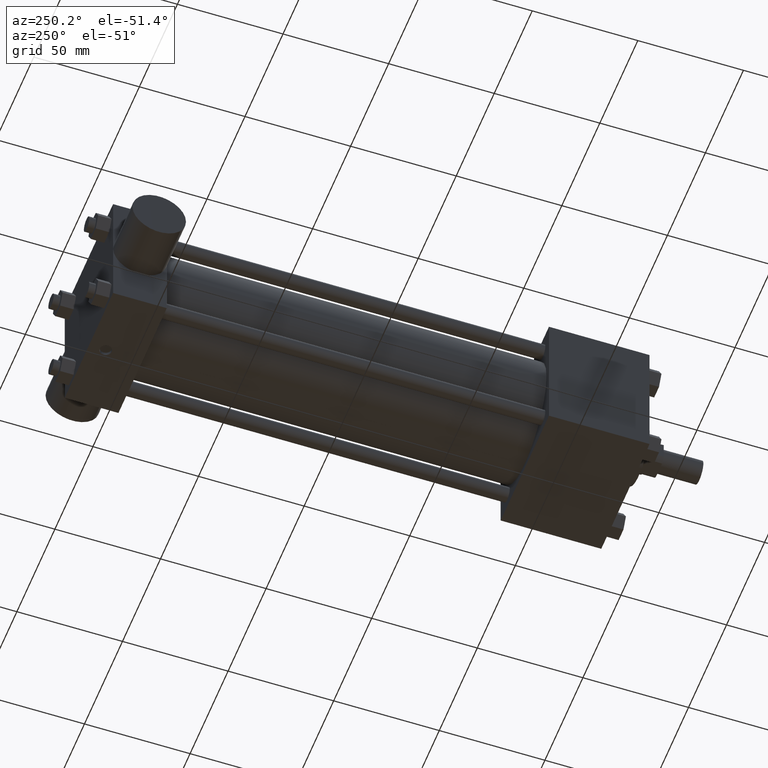
[diagram: clean part render]
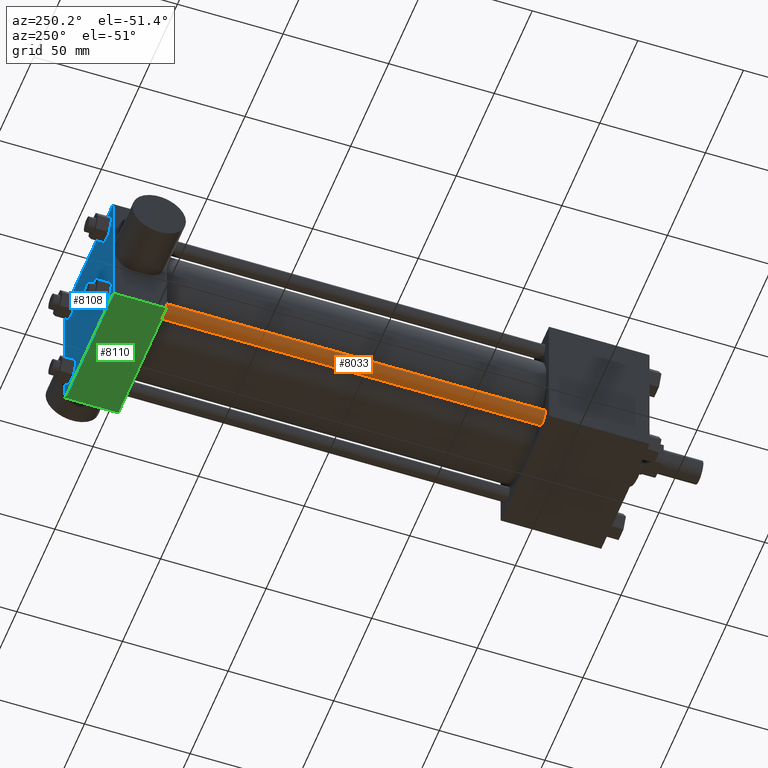
[diagram: same view with three faces highlighted in distinct colors, each labeled with its STEP entity id]
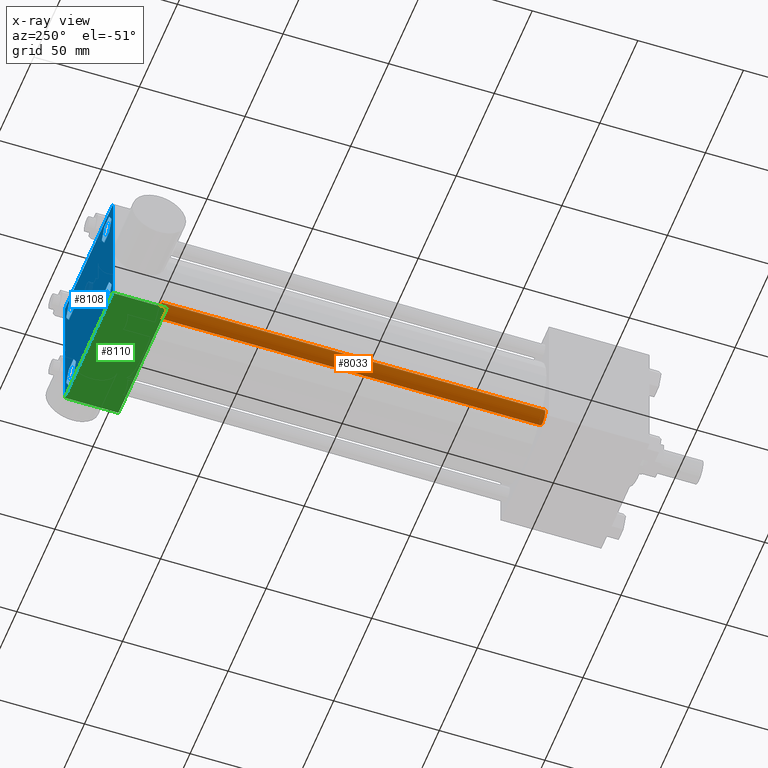
[diagram: x-ray of the same camera — body ghosted, the three highlighted faces saturated]
A machine part, auxiliary view with three faces highlighted in distinct colors.
The next image is the same camera in x-ray (body ghosted, the three faces saturated) — at least one of them is partly hidden behind the body in this view.
Their STEP definitions:

[orange] entity #8033 — the highlighted cylindrical surface (bore or boss wall) has radius 3.5687 mm, axis along (0, -1, 0).
#518=EDGE_CURVE('',#524,#524,#519,.T.);
#519=CIRCLE('',#520,3.568700000E+000);
#520=AXIS2_PLACEMENT_3D('',#521,#522,#523);
#521=CARTESIAN_POINT('',(-2.336800000E+001,6.350000000E+001,-2.336800000E+001));
#522=DIRECTION('',(0.0E+000,1.0E+000,0.0E+000));
#523=DIRECTION('',(1.0E+000,0.0E+000,0.0E+000));
#524=VERTEX_POINT('',#525);
#525=CARTESIAN_POINT('',(-1.979930000E+001,6.350000000E+001,-2.336800000E+001));
#2375=FACE_OUTER_BOUND('',#2377,.T.);
#2376=FACE_BOUND('',#2378,.T.);
#2377=EDGE_LOOP('',(#2379));
#2378=EDGE_LOOP('',(#2380));
#2379=ORIENTED_EDGE('',*,*,#2424,.F.);
#2380=ORIENTED_EDGE('',*,*,#518,.T.);
#2381=CYLINDRICAL_SURFACE('',#2382,3.568700000E+000);
#2382=AXIS2_PLACEMENT_3D('',#2383,#2384,#2385);
#2383=CARTESIAN_POINT('',(-2.336800000E+001,2.444750000E+002,-2.336800000E+001));
#2384=DIRECTION('',(0.0E+000,-1.0E+000,0.0E+000));
#2385=DIRECTION('',(0.0E+000,0.0E+000,-1.0E+000));
#2424=EDGE_CURVE('',#2430,#2430,#2425,.T.);
#2425=CIRCLE('',#2426,3.568700000E+000);
#2426=AXIS2_PLACEMENT_3D('',#2427,#2428,#2429);
#2427=CARTESIAN_POINT('',(-2.336800000E+001,2.444750000E+002,-2.336800000E+001));
#2428=DIRECTION('',(0.0E+000,1.0E+000,0.0E+000));
#2429=DIRECTION('',(1.0E+000,0.0E+000,0.0E+000));
#2430=VERTEX_POINT('',#2431);
#2431=CARTESIAN_POINT('',(-1.979930000E+001,2.444750000E+002,-2.336800000E+001));
#8033=ADVANCED_FACE('',(#2375,#2376),#2381,.T.);

[blue] entity #8108 — the highlighted planar face has unit normal (0, 1, 0).
#4324=FACE_OUTER_BOUND('',#4329,.T.);
#4325=FACE_BOUND('',#4330,.T.);
#4326=FACE_BOUND('',#4331,.T.);
#4327=FACE_BOUND('',#4332,.T.);
#4328=FACE_BOUND('',#4333,.T.);
#4329=EDGE_LOOP('',(#4334,#4335,#4336,#4337,#4338,#4339));
#4330=EDGE_LOOP('',(#4382,#4383,#4384,#4385,#4386,#4387));
#4331=EDGE_LOOP('',(#4430,#4431,#4432,#4433));
#4332=EDGE_LOOP('',(#4462,#4463,#4464,#4465,#4466,#4467));
#4333=EDGE_LOOP('',(#4510,#4511,#4512,#4513,#4514,#4515));
#4334=ORIENTED_EDGE('',*,*,#4340,.T.);
#4335=ORIENTED_EDGE('',*,*,#4349,.T.);
#4336=ORIENTED_EDGE('',*,*,#4356,.T.);
#4337=ORIENTED_EDGE('',*,*,#4363,.T.);
#4338=ORIENTED_EDGE('',*,*,#4370,.T.);
#4339=ORIENTED_EDGE('',*,*,#4377,.T.);
#4340=EDGE_CURVE('',#4345,#4346,#4341,.T.);
#4341=LINE('',#4342,#4343);
#4342=CARTESIAN_POINT('',(-2.657590653E+001,2.698750000E+002,2.892424574E+001));
#4343=VECTOR('',#4344,1.0E+000);
#4344=DIRECTION('',(-5.0E-001,0.0E+000,-8.66025403784439E-001));
#4345=VERTEX_POINT('',#4347);
#4346=VERTEX_POINT('',#4348);
#4347=CARTESIAN_POINT('',(-2.657590653E+001,2.698750000E+002,2.892424574E+001));
#4348=CARTESIAN_POINT('',(-2.978380323E+001,2.698750000E+002,2.336800000E+001));
#4349=EDGE_CURVE('',#4346,#4354,#4350,.T.);
#4350=LINE('',#4351,#4352);
#4351=CARTESIAN_POINT('',(-2.978380323E+001,2.698750000E+002,2.336800000E+001));
#4352=VECTOR('',#4353,1.0E+000);
#4353=DIRECTION('',(5.0E-001,0.0E+000,-8.66025403784439E-001));
#4354=VERTEX_POINT('',#4355);
#4355=CARTESIAN_POINT('',(-2.657590653E+001,2.698750000E+002,1.781175426E+001));
#4356=EDGE_CURVE('',#4354,#4361,#4357,.T.);
#4357=LINE('',#4358,#4359);
#4358=CARTESIAN_POINT('',(-2.657590653E+001,2.698750000E+002,1.781175426E+001));
#4359=VECTOR('',#4360,1.0E+000);
#4360=DIRECTION('',(1.0E+000,0.0E+000,0.0E+000));
#4361=VERTEX_POINT('',#4362);
#4362=CARTESIAN_POINT('',(-2.016009347E+001,2.698750000E+002,1.781175426E+001));
#4363=EDGE_CURVE('',#4361,#4368,#4364,.T.);
#4364=LINE('',#4365,#4366);
#4365=CARTESIAN_POINT('',(-2.016009347E+001,2.698750000E+002,1.781175426E+001));
#4366=VECTOR('',#4367,1.0E+000);
#4367=DIRECTION('',(5.0E-001,0.0E+000,8.66025403784439E-001));
#4368=VERTEX_POINT('',#4369);
#4369=CARTESIAN_POINT('',(-1.695219677E+001,2.698750000E+002,2.336800000E+001));
#4370=EDGE_CURVE('',#4368,#4375,#4371,.T.);
#4371=LINE('',#4372,#4373);
#4372=CARTESIAN_POINT('',(-1.695219677E+001,2.698750000E+002,2.336800000E+001));
#4373=VECTOR('',#4374,1.0E+000);
#4374=DIRECTION('',(-5.0E-001,0.0E+000,8.66025403784439E-001));
#4375=VERTEX_POINT('',#4376);
#4376=CARTESIAN_POINT('',(-2.016009347E+001,2.698750000E+002,2.892424574E+001));
#4377=EDGE_CURVE('',#4375,#4345,#4378,.T.);
#4378=LINE('',#4379,#4380);
#4379=CARTESIAN_POINT('',(-2.016009347E+001,2.698750000E+002,2.892424574E+001));
#4380=VECTOR('',#4381,1.0E+000);
#4381=DIRECTION('',(-1.0E+000,0.0E+000,0.0E+000));
#4382=ORIENTED_EDGE('',*,*,#4388,.T.);
#4383=ORIENTED_EDGE('',*,*,#4397,.T.);
#4384=ORIENTED_EDGE('',*,*,#4404,.T.);
#4385=ORIENTED_EDGE('',*,*,#4411,.T.);
#4386=ORIENTED_EDGE('',*,*,#4418,.T.);
#4387=ORIENTED_EDGE('',*,*,#4425,.T.);
#4388=EDGE_CURVE('',#4393,#4394,#4389,.T.);
#4389=LINE('',#4390,#4391);
#4390=CARTESIAN_POINT('',(2.016009347E+001,2.698750000E+002,-1.781175426E+001));
#4391=VECTOR('',#4392,1.0E+000);
#4392=DIRECTION('',(-5.0E-001,0.0E+000,-8.66025403784439E-001));
#4393=VERTEX_POINT('',#4395);
#4394=VERTEX_POINT('',#4396);
#4395=CARTESIAN_POINT('',(2.016009347E+001,2.698750000E+002,-1.781175426E+001));
#4396=CARTESIAN_POINT('',(1.695219677E+001,2.698750000E+002,-2.336800000E+001));
#4397=EDGE_CURVE('',#4394,#4402,#4398,.T.);
#4398=LINE('',#4399,#4400);
#4399=CARTESIAN_POINT('',(1.695219677E+001,2.698750000E+002,-2.336800000E+001));
#4400=VECTOR('',#4401,1.0E+000);
#4401=DIRECTION('',(5.0E-001,0.0E+000,-8.66025403784439E-001));
#4402=VERTEX_POINT('',#4403);
#4403=CARTESIAN_POINT('',(2.016009347E+001,2.698750000E+002,-2.892424574E+001));
#4404=EDGE_CURVE('',#4402,#4409,#4405,.T.);
#4405=LINE('',#4406,#4407);
#4406=CARTESIAN_POINT('',(2.016009347E+001,2.698750000E+002,-2.892424574E+001));
#4407=VECTOR('',#4408,1.0E+000);
#4408=DIRECTION('',(1.0E+000,0.0E+000,0.0E+000));
#4409=VERTEX_POINT('',#4410);
#4410=CARTESIAN_POINT('',(2.657590653E+001,2.698750000E+002,-2.892424574E+001));
#4411=EDGE_CURVE('',#4409,#4416,#4412,.T.);
#4412=LINE('',#4413,#4414);
#4413=CARTESIAN_POINT('',(2.657590653E+001,2.698750000E+002,-2.892424574E+001));
#4414=VECTOR('',#4415,1.0E+000);
#4415=DIRECTION('',(5.0E-001,0.0E+000,8.66025403784439E-001));
#4416=VERTEX_POINT('',#4417);
#4417=CARTESIAN_POINT('',(2.978380323E+001,2.698750000E+002,-2.336800000E+001));
#4418=EDGE_CURVE('',#4416,#4423,#4419,.T.);
#4419=LINE('',#4420,#4421);
#4420=CARTESIAN_POINT('',(2.978380323E+001,2.698750000E+002,-2.336800000E+001));
#4421=VECTOR('',#4422,1.0E+000);
#4422=DIRECTION('',(-5.0E-001,0.0E+000,8.66025403784439E-001));
#4423=VERTEX_POINT('',#4424);
#4424=CARTESIAN_POINT('',(2.657590653E+001,2.698750000E+002,-1.781175426E+001));
#4425=EDGE_CURVE('',#4423,#4393,#4426,.T.);
#4426=LINE('',#4427,#4428);
#4427=CARTESIAN_POINT('',(2.657590653E+001,2.698750000E+002,-1.781175426E+001));
#4428=VECTOR('',#4429,1.0E+000);
#4429=DIRECTION('',(-1.0E+000,0.0E+000,0.0E+000));
#4430=ORIENTED_EDGE('',*,*,#4434,.F.);
#4431=ORIENTED_EDGE('',*,*,#4443,.F.);
#4432=ORIENTED_EDGE('',*,*,#4450,.F.);
#4433=ORIENTED_EDGE('',*,*,#4457,.F.);
#4434=EDGE_CURVE('',#4439,#4440,#4435,.T.);
#4435=LINE('',#4436,#4437);
#4436=CARTESIAN_POINT('',(-3.175000000E+001,2.698750000E+002,-3.175000000E+001));
#4437=VECTOR('',#4438,1.0E+000);
#4438=DIRECTION('',(1.0E+000,0.0E+000,0.0E+000));
#4439=VERTEX_POINT('',#4441);
#4440=VERTEX_POINT('',#4442);
#4441=CARTESIAN_POINT('',(-3.175000000E+001,2.698750000E+002,-3.175000000E+001));
#4442=CARTESIAN_POINT('',(3.175000000E+001,2.698750000E+002,-3.175000000E+001));
#4443=EDGE_CURVE('',#4448,#4439,#4444,.T.);
#4444=LINE('',#4445,#4446);
#4445=CARTESIAN_POINT('',(-3.175000000E+001,2.698750000E+002,3.175000000E+001));
#4446=VECTOR('',#4447,1.0E+000);
#4447=DIRECTION('',(0.0E+000,0.0E+000,-1.0E+000));
#4448=VERTEX_POINT('',#4449);
#4449=CARTESIAN_POINT('',(-3.175000000E+001,2.698750000E+002,3.175000000E+001));
#4450=EDGE_CURVE('',#4455,#4448,#4451,.T.);
#4451=LINE('',#4452,#4453);
#4452=CARTESIAN_POINT('',(3.175000000E+001,2.698750000E+002,3.175000000E+001));
#4453=VECTOR('',#4454,1.0E+000);
#4454=DIRECTION('',(-1.0E+000,0.0E+000,0.0E+000));
#4455=VERTEX_POINT('',#4456);
#4456=CARTESIAN_POINT('',(3.175000000E+001,2.698750000E+002,3.175000000E+001));
#4457=EDGE_CURVE('',#4440,#4455,#4458,.T.);
#4458=LINE('',#4459,#4460);
#4459=CARTESIAN_POINT('',(3.175000000E+001,2.698750000E+002,-3.175000000E+001));
#4460=VECTOR('',#4461,1.0E+000);
#4461=DIRECTION('',(0.0E+000,0.0E+000,1.0E+000));
#4462=ORIENTED_EDGE('',*,*,#4468,.T.);
#4463=ORIENTED_EDGE('',*,*,#4477,.T.);
#4464=ORIENTED_EDGE('',*,*,#4484,.T.);
#4465=ORIENTED_EDGE('',*,*,#4491,.T.);
#4466=ORIENTED_EDGE('',*,*,#4498,.T.);
#4467=ORIENTED_EDGE('',*,*,#4505,.T.);
#4468=EDGE_CURVE('',#4473,#4474,#4469,.T.);
#4469=LINE('',#4470,#4471);
#4470=CARTESIAN_POINT('',(-2.657590653E+001,2.698750000E+002,-1.781175426E+001));
#4471=VECTOR('',#4472,1.0E+000);
#4472=DIRECTION('',(-5.0E-001,0.0E+000,-8.66025403784439E-001));
#4473=VERTEX_POINT('',#4475);
#4474=VERTEX_POINT('',#4476);
#4475=CARTESIAN_POINT('',(-2.657590653E+001,2.698750000E+002,-1.781175426E+001));
#4476=CARTESIAN_POINT('',(-2.978380323E+001,2.698750000E+002,-2.336800000E+001));
#4477=EDGE_CURVE('',#4474,#4482,#4478,.T.);
#4478=LINE('',#4479,#4480);
#4479=CARTESIAN_POINT('',(-2.978380323E+001,2.698750000E+002,-2.336800000E+001));
#4480=VECTOR('',#4481,1.0E+000);
#4481=DIRECTION('',(5.0E-001,0.0E+000,-8.66025403784439E-001));
#4482=VERTEX_POINT('',#4483);
#4483=CARTESIAN_POINT('',(-2.657590653E+001,2.698750000E+002,-2.892424574E+001));
#4484=EDGE_CURVE('',#4482,#4489,#4485,.T.);
#4485=LINE('',#4486,#4487);
#4486=CARTESIAN_POINT('',(-2.657590653E+001,2.698750000E+002,-2.892424574E+001));
#4487=VECTOR('',#4488,1.0E+000);
#4488=DIRECTION('',(1.0E+000,0.0E+000,0.0E+000));
#4489=VERTEX_POINT('',#4490);
#4490=CARTESIAN_POINT('',(-2.016009347E+001,2.698750000E+002,-2.892424574E+001));
#4491=EDGE_CURVE('',#4489,#4496,#4492,.T.);
#4492=LINE('',#4493,#4494);
#4493=CARTESIAN_POINT('',(-2.016009347E+001,2.698750000E+002,-2.892424574E+001));
#4494=VECTOR('',#4495,1.0E+000);
#4495=DIRECTION('',(5.0E-001,0.0E+000,8.66025403784439E-001));
#4496=VERTEX_POINT('',#4497);
#4497=CARTESIAN_POINT('',(-1.695219677E+001,2.698750000E+002,-2.336800000E+001));
#4498=EDGE_CURVE('',#4496,#4503,#4499,.T.);
#4499=LINE('',#4500,#4501);
#4500=CARTESIAN_POINT('',(-1.695219677E+001,2.698750000E+002,-2.336800000E+001));
#4501=VECTOR('',#4502,1.0E+000);
#4502=DIRECTION('',(-5.0E-001,0.0E+000,8.66025403784439E-001));
#4503=VERTEX_POINT('',#4504);
#4504=CARTESIAN_POINT('',(-2.016009347E+001,2.698750000E+002,-1.781175426E+001));
#4505=EDGE_CURVE('',#4503,#4473,#4506,.T.);
#4506=LINE('',#4507,#4508);
#4507=CARTESIAN_POINT('',(-2.016009347E+001,2.698750000E+002,-1.781175426E+001));
#4508=VECTOR('',#4509,1.0E+000);
#4509=DIRECTION('',(-1.0E+000,0.0E+000,0.0E+000));
#4510=ORIENTED_EDGE('',*,*,#4516,.T.);
#4511=ORIENTED_EDGE('',*,*,#4525,.T.);
#4512=ORIENTED_EDGE('',*,*,#4532,.T.);
#4513=ORIENTED_EDGE('',*,*,#4539,.T.);
#4514=ORIENTED_EDGE('',*,*,#4546,.T.);
#4515=ORIENTED_EDGE('',*,*,#4553,.T.);
#4516=EDGE_CURVE('',#4521,#4522,#4517,.T.);
#4517=LINE('',#4518,#4519);
#4518=CARTESIAN_POINT('',(2.016009347E+001,2.698750000E+002,2.892424574E+001));
#4519=VECTOR('',#4520,1.0E+000);
#4520=DIRECTION('',(-5.0E-001,0.0E+000,-8.66025403784439E-001));
#4521=VERTEX_POINT('',#4523);
#4522=VERTEX_POINT('',#4524);
#4523=CARTESIAN_POINT('',(2.016009347E+001,2.698750000E+002,2.892424574E+001));
#4524=CARTESIAN_POINT('',(1.695219677E+001,2.698750000E+002,2.336800000E+001));
#4525=EDGE_CURVE('',#4522,#4530,#4526,.T.);
#4526=LINE('',#4527,#4528);
#4527=CARTESIAN_POINT('',(1.695219677E+001,2.698750000E+002,2.336800000E+001));
#4528=VECTOR('',#4529,1.0E+000);
#4529=DIRECTION('',(5.0E-001,0.0E+000,-8.66025403784439E-001));
#4530=VERTEX_POINT('',#4531);
#4531=CARTESIAN_POINT('',(2.016009347E+001,2.698750000E+002,1.781175426E+001));
#4532=EDGE_CURVE('',#4530,#4537,#4533,.T.);
#4533=LINE('',#4534,#4535);
#4534=CARTESIAN_POINT('',(2.016009347E+001,2.698750000E+002,1.781175426E+001));
#4535=VECTOR('',#4536,1.0E+000);
#4536=DIRECTION('',(1.0E+000,0.0E+000,0.0E+000));
#4537=VERTEX_POINT('',#4538);
#4538=CARTESIAN_POINT('',(2.657590653E+001,2.698750000E+002,1.781175426E+001));
#4539=EDGE_CURVE('',#4537,#4544,#4540,.T.);
#4540=LINE('',#4541,#4542);
#4541=CARTESIAN_POINT('',(2.657590653E+001,2.698750000E+002,1.781175426E+001));
#4542=VECTOR('',#4543,1.0E+000);
#4543=DIRECTION('',(5.0E-001,0.0E+000,8.66025403784439E-001));
#4544=VERTEX_POINT('',#4545);
#4545=CARTESIAN_POINT('',(2.978380323E+001,2.698750000E+002,2.336800000E+001));
#4546=EDGE_CURVE('',#4544,#4551,#4547,.T.);
#4547=LINE('',#4548,#4549);
#4548=CARTESIAN_POINT('',(2.978380323E+001,2.698750000E+002,2.336800000E+001));
#4549=VECTOR('',#4550,1.0E+000);
#4550=DIRECTION('',(-5.0E-001,0.0E+000,8.66025403784439E-001));
#4551=VERTEX_POINT('',#4552);
#4552=CARTESIAN_POINT('',(2.657590653E+001,2.698750000E+002,2.892424574E+001));
#4553=EDGE_CURVE('',#4551,#4521,#4554,.T.);
#4554=LINE('',#4555,#4556);
#4555=CARTESIAN_POINT('',(2.657590653E+001,2.698750000E+002,2.892424574E+001));
#4556=VECTOR('',#4557,1.0E+000);
#4557=DIRECTION('',(-1.0E+000,0.0E+000,0.0E+000));
#4558=PLANE('',#4559);
#4559=AXIS2_PLACEMENT_3D('',#4560,#4561,#4562);
#4560=CARTESIAN_POINT('',(-3.175000000E+001,2.698750000E+002,-3.175000000E+001));
#4561=DIRECTION('',(0.0E+000,1.0E+000,0.0E+000));
#4562=DIRECTION('',(0.0E+000,0.0E+000,1.0E+000));
#8108=ADVANCED_FACE('',(#4324,#4325,#4326,#4327,#4328),#4558,.T.);

[green] entity #8110 — the highlighted planar face has unit normal (0, 0, -1).
#4434=EDGE_CURVE('',#4439,#4440,#4435,.T.);
#4435=LINE('',#4436,#4437);
#4436=CARTESIAN_POINT('',(-3.175000000E+001,2.698750000E+002,-3.175000000E+001));
#4437=VECTOR('',#4438,1.0E+000);
#4438=DIRECTION('',(1.0E+000,0.0E+000,0.0E+000));
#4439=VERTEX_POINT('',#4441);
#4440=VERTEX_POINT('',#4442);
#4441=CARTESIAN_POINT('',(-3.175000000E+001,2.698750000E+002,-3.175000000E+001));
#4442=CARTESIAN_POINT('',(3.175000000E+001,2.698750000E+002,-3.175000000E+001));
#4607=EDGE_CURVE('',#4612,#4613,#4608,.T.);
#4608=LINE('',#4609,#4610);
#4609=CARTESIAN_POINT('',(-3.175000000E+001,2.444750000E+002,-3.175000000E+001));
#4610=VECTOR('',#4611,1.0E+000);
#4611=DIRECTION('',(1.0E+000,0.0E+000,0.0E+000));
#4612=VERTEX_POINT('',#4614);
#4613=VERTEX_POINT('',#4615);
#4614=CARTESIAN_POINT('',(-3.175000000E+001,2.444750000E+002,-3.175000000E+001));
#4615=CARTESIAN_POINT('',(3.175000000E+001,2.444750000E+002,-3.175000000E+001));
#4649=FACE_OUTER_BOUND('',#4651,.T.);
#4650=FACE_BOUND('',#4652,.T.);
#4651=EDGE_LOOP('',(#4653,#4654,#4655,#4656));
#4652=EDGE_LOOP('',(#4667));
#4653=ORIENTED_EDGE('',*,*,#4607,.F.);
#4654=ORIENTED_EDGE('',*,*,#4657,.F.);
#4655=ORIENTED_EDGE('',*,*,#4434,.T.);
#4656=ORIENTED_EDGE('',*,*,#4662,.T.);
#4657=EDGE_CURVE('',#4439,#4612,#4658,.T.);
#4658=LINE('',#4659,#4660);
#4659=CARTESIAN_POINT('',(-3.175000000E+001,2.698750000E+002,-3.175000000E+001));
#4660=VECTOR('',#4661,1.0E+000);
#4661=DIRECTION('',(0.0E+000,-1.0E+000,0.0E+000));
#4662=EDGE_CURVE('',#4440,#4613,#4663,.T.);
#4663=LINE('',#4664,#4665);
#4664=CARTESIAN_POINT('',(3.175000000E+001,2.698750000E+002,-3.175000000E+001));
#4665=VECTOR('',#4666,1.0E+000);
#4666=DIRECTION('',(0.0E+000,-1.0E+000,0.0E+000));
#4667=ORIENTED_EDGE('',*,*,#4668,.T.);
#4668=EDGE_CURVE('',#4674,#4674,#4669,.T.);
#4669=CIRCLE('',#4670,2.778125000E+000);
#4670=AXIS2_PLACEMENT_3D('',#4671,#4672,#4673);
#4671=CARTESIAN_POINT('',(0.000000000E+000,2.619375000E+002,-3.175000000E+001));
#4672=DIRECTION('',(0.0E+000,0.0E+000,1.0E+000));
#4673=DIRECTION('',(1.0E+000,0.0E+000,0.0E+000));
#4674=VERTEX_POINT('',#4675);
#4675=CARTESIAN_POINT('',(2.778125000E+000,2.619375000E+002,-3.175000000E+001));
#4676=PLANE('',#4677);
#4677=AXIS2_PLACEMENT_3D('',#4678,#4679,#4680);
#4678=CARTESIAN_POINT('',(-3.175000000E+001,2.698750000E+002,-3.175000000E+001));
#4679=DIRECTION('',(0.0E+000,0.0E+000,-1.0E+000));
#4680=DIRECTION('',(-1.0E+000,0.0E+000,0.0E+000));
#8110=ADVANCED_FACE('',(#4649,#4650),#4676,.T.);